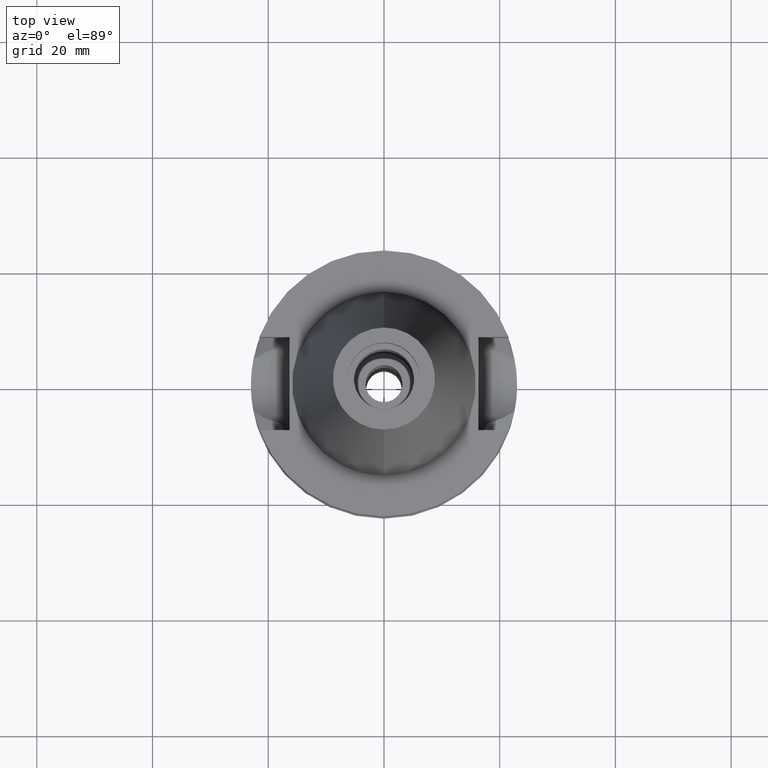
[diagram: clean part render]
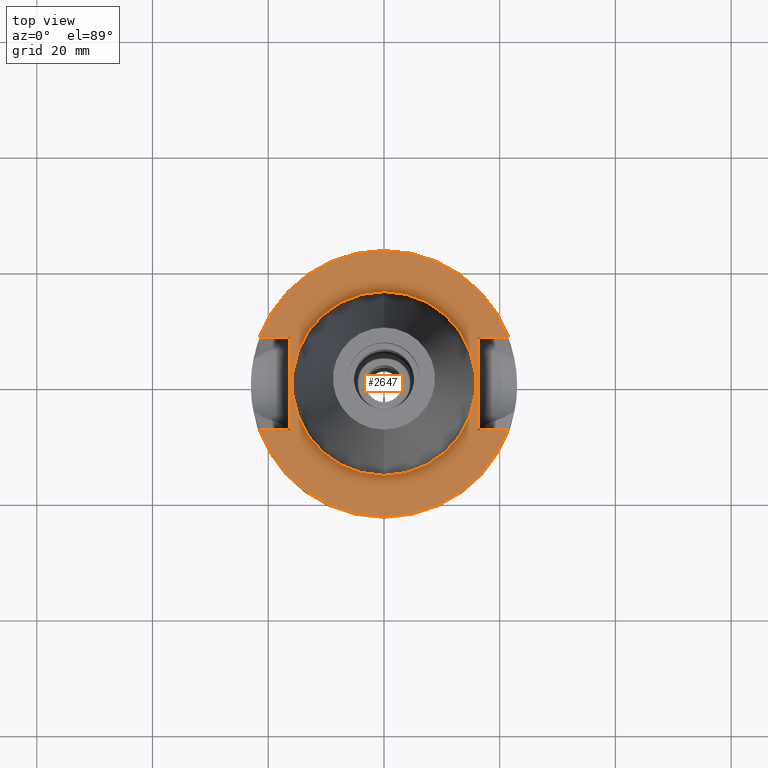
[diagram: same view with one face highlighted and labeled with its STEP entity id]
A machine part, top view. The second image highlights one B-rep face of the part: STEP entity #2647.
In plain terms, the highlighted planar face has unit normal (0, 0, -1).
Its self-contained STEP definition (entity closure, byte-faithful):
#96 = DIRECTION ( 'NONE',  ( 1.000000000000000000, 0.0000000000000000000, 0.0000000000000000000 ) ) ;
#109 = CARTESIAN_POINT ( 'NONE',  ( -16.29999999999999716, -8.050000000000000711, -1.000000000000000000 ) ) ;
#116 = ORIENTED_EDGE ( 'NONE', *, *, #467, .F. ) ;
#124 = EDGE_CURVE ( 'NONE', #1400, #2772, #2155, .T. ) ;
#158 = DIRECTION ( 'NONE',  ( 0.0000000000000000000, -1.000000000000000000, 0.0000000000000000000 ) ) ;
#173 = DIRECTION ( 'NONE',  ( 0.0000000000000000000, 0.0000000000000000000, -1.000000000000000000 ) ) ;
#191 = CARTESIAN_POINT ( 'NONE',  ( 21.54715579650000024, 8.050000000000000711, -0.9999999999999000799 ) ) ;
#208 = CIRCLE ( 'NONE', #2082, 23.00179173279000011 ) ;
#304 = LINE ( 'NONE', #1848, #1631 ) ;
#323 = EDGE_CURVE ( 'NONE', #1857, #2679, #2290, .T. ) ;
#388 = FACE_OUTER_BOUND ( 'NONE', #2738, .T. ) ;
#401 = CARTESIAN_POINT ( 'NONE',  ( 16.29999999999999716, -8.050000000000000711, -1.000000000000000000 ) ) ;
#402 = ORIENTED_EDGE ( 'NONE', *, *, #1773, .F. ) ;
#407 = CIRCLE ( 'NONE', #2056, 15.87500000000000000 ) ;
#467 = EDGE_CURVE ( 'NONE', #1855, #747, #2532, .T. ) ;
#519 = LINE ( 'NONE', #401, #2084 ) ;
#527 = CARTESIAN_POINT ( 'NONE',  ( 21.54715579650000024, -8.050000000000000711, -1.000000000000000000 ) ) ;
#581 = CARTESIAN_POINT ( 'NONE',  ( -21.54715579650000024, -8.050000000000000711, -1.000000000000000000 ) ) ;
#602 = FACE_BOUND ( 'NONE', #2161, .T. ) ;
#612 = EDGE_CURVE ( 'NONE', #2338, #2848, #304, .T. ) ;
#709 = ORIENTED_EDGE ( 'NONE', *, *, #972, .F. ) ;
#747 = VERTEX_POINT ( 'NONE', #2454 ) ;
#753 = DIRECTION ( 'NONE',  ( 0.0000000000000000000, 0.0000000000000000000, -1.000000000000000000 ) ) ;
#812 = LINE ( 'NONE', #1711, #1947 ) ;
#820 = CARTESIAN_POINT ( 'NONE',  ( 0.0000000000000000000, 1.212400331155999925E-14, -1.000000000000000000 ) ) ;
#823 = LINE ( 'NONE', #1707, #2869 ) ;
#825 = EDGE_CURVE ( 'NONE', #747, #1855, #407, .T. ) ;
#886 = VECTOR ( 'NONE', #2437, 1000.000000000000000 ) ;
#930 = CARTESIAN_POINT ( 'NONE',  ( 0.0000000000000000000, 15.87500000000000000, -0.9999999999999000799 ) ) ;
#942 = CARTESIAN_POINT ( 'NONE',  ( -16.29999999999999716, 8.050000000000000711, -1.000000000000000000 ) ) ;
#972 = EDGE_CURVE ( 'NONE', #2338, #1425, #823, .T. ) ;
#1010 = CARTESIAN_POINT ( 'NONE',  ( 16.29999999999999716, -8.050000000000000711, -1.000000000000000000 ) ) ;
#1023 = ORIENTED_EDGE ( 'NONE', *, *, #124, .T. ) ;
#1024 = PLANE ( 'NONE',  #1239 ) ;
#1044 = DIRECTION ( 'NONE',  ( 1.000000000000000000, 0.0000000000000000000, 0.0000000000000000000 ) ) ;
#1048 = DIRECTION ( 'NONE',  ( 0.0000000000000000000, -1.000000000000000000, 0.0000000000000000000 ) ) ;
#1122 = CARTESIAN_POINT ( 'NONE',  ( 0.0000000000000000000, 1.881302412850000052E-14, -0.9999999999999000799 ) ) ;
#1204 = DIRECTION ( 'NONE',  ( 0.0000000000000000000, 0.0000000000000000000, -1.000000000000000000 ) ) ;
#1239 = AXIS2_PLACEMENT_3D ( 'NONE', #820, #173, #1048 ) ;
#1245 = ORIENTED_EDGE ( 'NONE', *, *, #1729, .F. ) ;
#1315 = DIRECTION ( 'NONE',  ( 0.0000000000000000000, 1.000000000000000000, 0.0000000000000000000 ) ) ;
#1400 = VERTEX_POINT ( 'NONE', #109 ) ;
#1425 = VERTEX_POINT ( 'NONE', #1010 ) ;
#1531 = ORIENTED_EDGE ( 'NONE', *, *, #1952, .F. ) ;
#1536 = AXIS2_PLACEMENT_3D ( 'NONE', #1122, #1580, #1315 ) ;
#1544 = CARTESIAN_POINT ( 'NONE',  ( -16.29999999999999716, -8.050000000000000711, -1.000000000000000000 ) ) ;
#1580 = DIRECTION ( 'NONE',  ( 0.0000000000000000000, 0.0000000000000000000, 1.000000000000000000 ) ) ;
#1622 = EDGE_CURVE ( 'NONE', #2679, #2848, #2000, .T. ) ;
#1631 = VECTOR ( 'NONE', #96, 1000.000000000000000 ) ;
#1661 = AXIS2_PLACEMENT_3D ( 'NONE', #2769, #753, #1699 ) ;
#1677 = DIRECTION ( 'NONE',  ( 0.0000000000000000000, -1.000000000000000000, 0.0000000000000000000 ) ) ;
#1690 = ORIENTED_EDGE ( 'NONE', *, *, #1622, .F. ) ;
#1699 = DIRECTION ( 'NONE',  ( 0.0000000000000000000, 1.000000000000000000, 0.0000000000000000000 ) ) ;
#1704 = CARTESIAN_POINT ( 'NONE',  ( -21.54715579650000024, 8.050000000000000711, -1.000000000000000000 ) ) ;
#1707 = CARTESIAN_POINT ( 'NONE',  ( 16.29999999999999716, 8.050000000000000711, -1.000000000000000000 ) ) ;
#1711 = CARTESIAN_POINT ( 'NONE',  ( -16.29999999999999716, -8.050000000000000711, -1.000000000000000000 ) ) ;
#1726 = ORIENTED_EDGE ( 'NONE', *, *, #323, .F. ) ;
#1729 = EDGE_CURVE ( 'NONE', #2257, #2772, #208, .T. ) ;
#1773 = EDGE_CURVE ( 'NONE', #1400, #1857, #812, .T. ) ;
#1848 = CARTESIAN_POINT ( 'NONE',  ( 16.29999999999999716, 8.050000000000000711, -1.000000000000000000 ) ) ;
#1855 = VERTEX_POINT ( 'NONE', #930 ) ;
#1857 = VERTEX_POINT ( 'NONE', #2488 ) ;
#1884 = CARTESIAN_POINT ( 'NONE',  ( 0.0000000000000000000, 1.881302412850000052E-14, -0.9999999999999000799 ) ) ;
#1907 = VECTOR ( 'NONE', #2341, 1000.000000000000000 ) ;
#1947 = VECTOR ( 'NONE', #2611, 1000.000000000000000 ) ;
#1952 = EDGE_CURVE ( 'NONE', #1425, #2257, #519, .T. ) ;
#2000 = CIRCLE ( 'NONE', #1661, 23.00179173279000011 ) ;
#2056 = AXIS2_PLACEMENT_3D ( 'NONE', #1884, #2325, #1677 ) ;
#2073 = CARTESIAN_POINT ( 'NONE',  ( 0.0000000000000000000, 1.881302412850000052E-14, -0.9999999999999000799 ) ) ;
#2082 = AXIS2_PLACEMENT_3D ( 'NONE', #2073, #1204, #2109 ) ;
#2084 = VECTOR ( 'NONE', #1044, 1000.000000000000000 ) ;
#2109 = DIRECTION ( 'NONE',  ( 0.0000000000000000000, -1.000000000000000000, 0.0000000000000000000 ) ) ;
#2121 = ORIENTED_EDGE ( 'NONE', *, *, #612, .T. ) ;
#2155 = LINE ( 'NONE', #1544, #886 ) ;
#2161 = EDGE_LOOP ( 'NONE', ( #116, #2597 ) ) ;
#2257 = VERTEX_POINT ( 'NONE', #527 ) ;
#2290 = LINE ( 'NONE', #942, #1907 ) ;
#2325 = DIRECTION ( 'NONE',  ( 0.0000000000000000000, 0.0000000000000000000, 1.000000000000000000 ) ) ;
#2338 = VERTEX_POINT ( 'NONE', #2365 ) ;
#2341 = DIRECTION ( 'NONE',  ( -1.000000000000000000, 0.0000000000000000000, 0.0000000000000000000 ) ) ;
#2365 = CARTESIAN_POINT ( 'NONE',  ( 16.29999999999999716, 8.050000000000000711, -1.000000000000000000 ) ) ;
#2437 = DIRECTION ( 'NONE',  ( -1.000000000000000000, 0.0000000000000000000, 0.0000000000000000000 ) ) ;
#2454 = CARTESIAN_POINT ( 'NONE',  ( 0.0000000000000000000, -15.87500000000000000, -0.9999999999999000799 ) ) ;
#2488 = CARTESIAN_POINT ( 'NONE',  ( -16.29999999999999716, 8.050000000000000711, -1.000000000000000000 ) ) ;
#2532 = CIRCLE ( 'NONE', #1536, 15.87500000000000000 ) ;
#2597 = ORIENTED_EDGE ( 'NONE', *, *, #825, .F. ) ;
#2611 = DIRECTION ( 'NONE',  ( 0.0000000000000000000, 1.000000000000000000, 0.0000000000000000000 ) ) ;
#2647 = ADVANCED_FACE ( 'NONE', ( #388, #602 ), #1024, .F. ) ;
#2679 = VERTEX_POINT ( 'NONE', #1704 ) ;
#2738 = EDGE_LOOP ( 'NONE', ( #1023, #1245, #1531, #709, #2121, #1690, #1726, #402 ) ) ;
#2769 = CARTESIAN_POINT ( 'NONE',  ( 0.0000000000000000000, 1.881302412850000052E-14, -0.9999999999999000799 ) ) ;
#2772 = VERTEX_POINT ( 'NONE', #581 ) ;
#2848 = VERTEX_POINT ( 'NONE', #191 ) ;
#2869 = VECTOR ( 'NONE', #158, 1000.000000000000000 ) ;